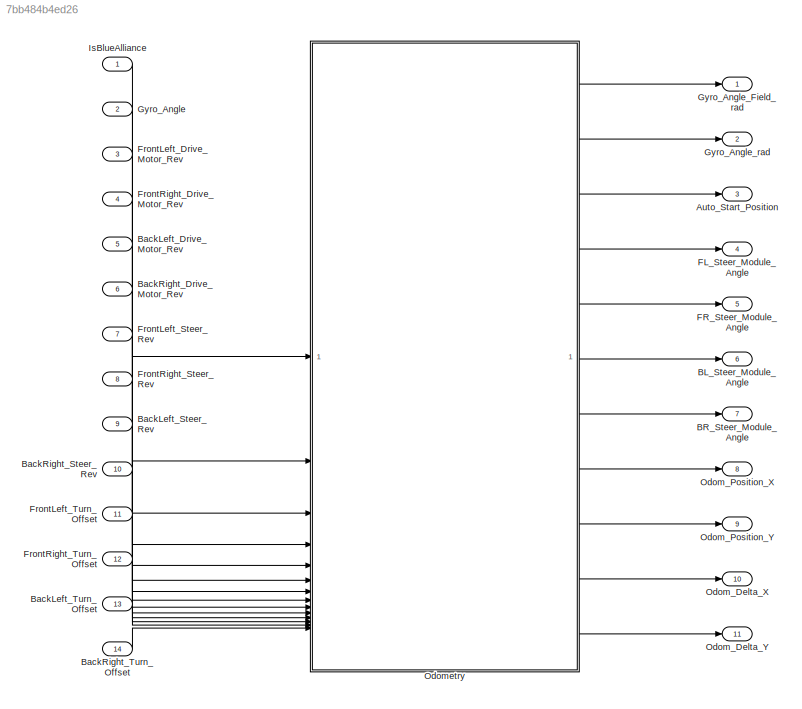
MODEL slx_7bb484b4ed26
KIND model
CONFIG AbsTol = auto
CONFIG EnableMultiTasking = off
CONFIG FixedStep = t_sample_fast
CONFIG MaxStep = auto
CONFIG MinStep = auto
CONFIG RelTol = 1e-3
CONFIG SampleTimeConstraint = Unconstrained
CONFIG SolverName = FixedStepDiscrete
CONFIG StartTime = 0.0
CONFIG StopTime = inf
BLOCK [Outport] Auto_Start_Position
  Port = 3
BLOCK [Outport] BL_Steer_Module_Angle
  OutDataTypeStr = double
  Port = 6
  Unit = rad
BLOCK [Outport] BR_Steer_Module_Angle
  OutDataTypeStr = double
  Port = 7
  Unit = rad
BLOCK [Inport] BackLeft_Drive_Motor_Rev
  Port = 5
BLOCK [Inport] BackLeft_Steer_Rev
  Port = 9
BLOCK [Inport] BackLeft_Turn_Offset
  Port = 13
BLOCK [Inport] BackRight_Drive_Motor_Rev
  Port = 6
BLOCK [Inport] BackRight_Steer_Rev
  Port = 10
BLOCK [Inport] BackRight_Turn_Offset
  Port = 14
BLOCK [Outport] FL_Steer_Module_Angle
  OutDataTypeStr = double
  Port = 4
  Unit = rad
BLOCK [Outport] FR_Steer_Module_Angle
  OutDataTypeStr = double
  Port = 5
  Unit = rad
BLOCK [Inport] FrontLeft_Drive_Motor_Rev
  Port = 3
BLOCK [Inport] FrontLeft_Steer_Rev
  Port = 7
BLOCK [Inport] FrontLeft_Turn_Offset
  Port = 11
BLOCK [Inport] FrontRight_Drive_Motor_Rev
  Port = 4
BLOCK [Inport] FrontRight_Steer_Rev
  Port = 8
BLOCK [Inport] FrontRight_Turn_Offset
  Port = 12
BLOCK [Inport] Gyro_Angle
  Port = 2
BLOCK [Outport] Gyro_Angle_Field_rad
BLOCK [Outport] Gyro_Angle_rad
  Port = 2
BLOCK [Inport] IsBlueAlliance
BLOCK [Outport] Odom_Delta_X
  Port = 10
BLOCK [Outport] Odom_Delta_Y
  Port = 11
BLOCK [Outport] Odom_Position_X
  Port = 8
BLOCK [Outport] Odom_Position_Y
  Port = 9
BLOCK [SubSystem] Odometry
  ReferencedSubsystem = Odometry_sub
LINE BackLeft_Drive_Motor_Rev:1 -> Odometry:5
LINE BackLeft_Steer_Rev:1 -> Odometry:9
LINE BackLeft_Turn_Offset:1 -> Odometry:13
LINE BackRight_Drive_Motor_Rev:1 -> Odometry:6
LINE BackRight_Steer_Rev:1 -> Odometry:10
LINE BackRight_Turn_Offset:1 -> Odometry:14
LINE FrontLeft_Drive_Motor_Rev:1 -> Odometry:3
LINE FrontLeft_Steer_Rev:1 -> Odometry:7
LINE FrontLeft_Turn_Offset:1 -> Odometry:11
LINE FrontRight_Drive_Motor_Rev:1 -> Odometry:4
LINE FrontRight_Steer_Rev:1 -> Odometry:8
LINE FrontRight_Turn_Offset:1 -> Odometry:12
LINE Gyro_Angle:1 -> Odometry:2
LINE IsBlueAlliance:1 -> Odometry:1
LINE Odometry:1 -> Gyro_Angle_Field_rad:1
LINE Odometry:10 -> Odom_Delta_X:1
LINE Odometry:11 -> Odom_Delta_Y:1
LINE Odometry:2 -> Gyro_Angle_rad:1
LINE Odometry:3 -> Auto_Start_Position:1
LINE Odometry:4 -> FL_Steer_Module_Angle:1
LINE Odometry:5 -> FR_Steer_Module_Angle:1
LINE Odometry:6 -> BL_Steer_Module_Angle:1
LINE Odometry:7 -> BR_Steer_Module_Angle:1
LINE Odometry:8 -> Odom_Position_X:1
LINE Odometry:9 -> Odom_Position_Y:1
